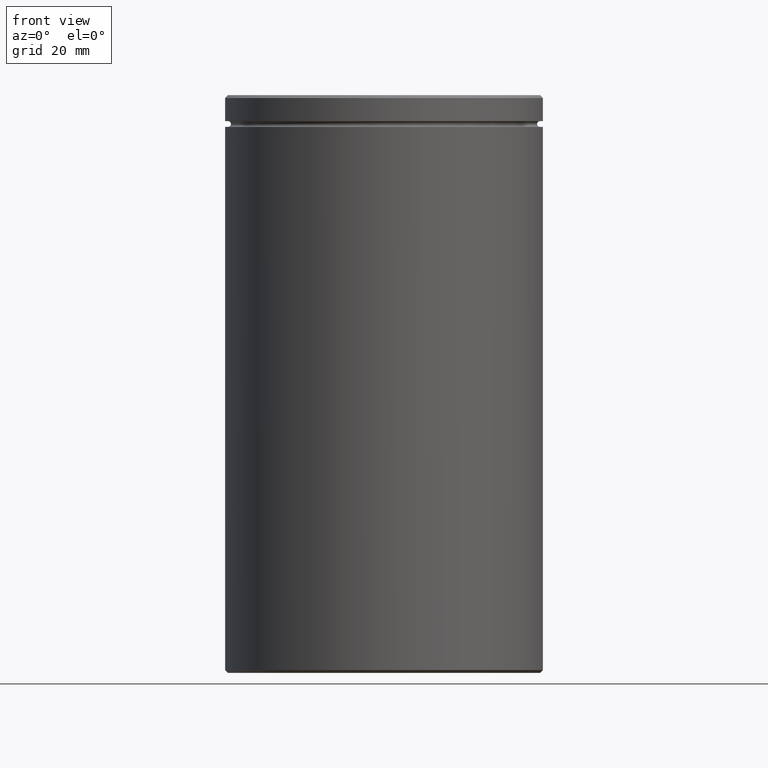
[diagram: clean part render]
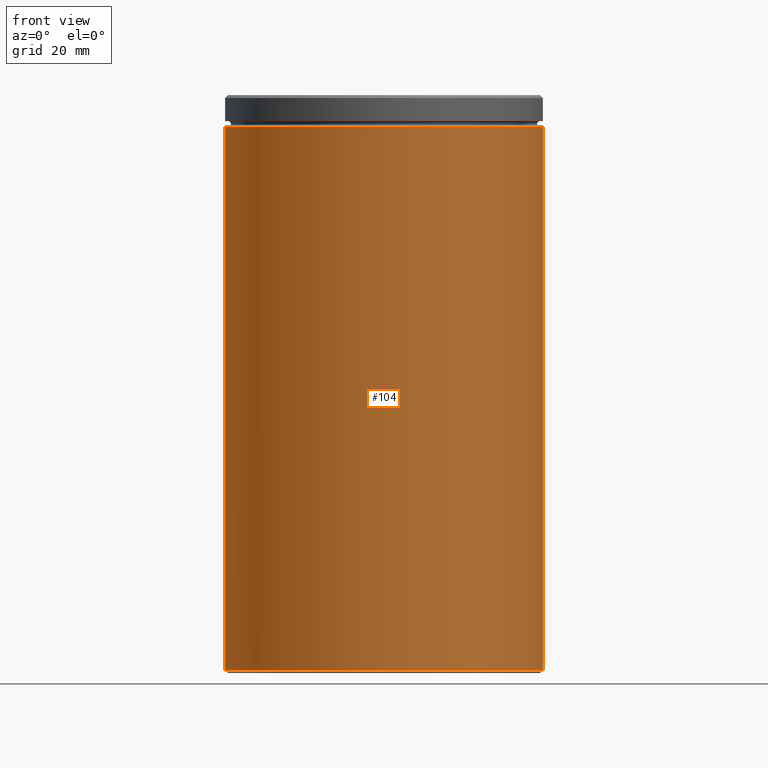
[diagram: same view with one face highlighted and labeled with its STEP entity id]
A machine part, front view. The second image highlights one B-rep face of the part: STEP entity #104.
In plain terms, the highlighted cylindrical surface (partial cylindrical patch) has radius 27.5 mm, axis along (-0, -0, 1).
Its self-contained STEP definition (entity closure, byte-faithful):
#28 = LINE ( 'NONE', #181, #98 ) ;
#47 = DIRECTION ( 'NONE',  ( -0.000000000000000000, -0.000000000000000000, 1.000000000000000000 ) ) ;
#57 = ORIENTED_EDGE ( 'NONE', *, *, #567, .F. ) ;
#63 = DIRECTION ( 'NONE',  ( -0.000000000000000000, -0.000000000000000000, 1.000000000000000000 ) ) ;
#65 = CIRCLE ( 'NONE', #158, 27.50000000000000000 ) ;
#85 = DIRECTION ( 'NONE',  ( 1.000000000000000000, 0.000000000000000000, 0.000000000000000000 ) ) ;
#92 = ORIENTED_EDGE ( 'NONE', *, *, #315, .F. ) ;
#98 = VECTOR ( 'NONE', #399, 1000.000000000000000 ) ;
#104 = ADVANCED_FACE ( 'NONE', ( #106 ), #367, .T. ) ;
#106 = FACE_OUTER_BOUND ( 'NONE', #120, .T. ) ;
#120 = EDGE_LOOP ( 'NONE', ( #92, #170, #350, #57 ) ) ;
#121 = DIRECTION ( 'NONE',  ( -1.000000000000000000, 0.000000000000000000, 0.000000000000000000 ) ) ;
#158 = AXIS2_PLACEMENT_3D ( 'NONE', #226, #313, #85 ) ;
#170 = ORIENTED_EDGE ( 'NONE', *, *, #472, .T. ) ;
#175 = CARTESIAN_POINT ( 'NONE',  ( 0.000000000000000000, 0.000000000000000000, -99.49999999999995737 ) ) ;
#181 = CARTESIAN_POINT ( 'NONE',  ( 27.50000000000000000, 0.000000000000000000, 0.000000000000000000 ) ) ;
#182 = VERTEX_POINT ( 'NONE', #419 ) ;
#201 = CARTESIAN_POINT ( 'NONE',  ( 0.000000000000000000, 0.000000000000000000, 0.000000000000000000 ) ) ;
#218 = CARTESIAN_POINT ( 'NONE',  ( 27.50000000000000000, 0.000000000000000000, -5.500000000000000000 ) ) ;
#223 = EDGE_CURVE ( 'NONE', #345, #490, #28, .T. ) ;
#226 = CARTESIAN_POINT ( 'NONE',  ( 0.000000000000000000, 0.000000000000000000, -5.500000000000000000 ) ) ;
#313 = DIRECTION ( 'NONE',  ( -0.000000000000000000, -0.000000000000000000, 1.000000000000000000 ) ) ;
#315 = EDGE_CURVE ( 'NONE', #182, #540, #492, .T. ) ;
#321 = CARTESIAN_POINT ( 'NONE',  ( 27.50000000000000000, 0.000000000000000000, -99.49999999999995737 ) ) ;
#334 = DIRECTION ( 'NONE',  ( -0.000000000000000000, -0.000000000000000000, 1.000000000000000000 ) ) ;
#337 = AXIS2_PLACEMENT_3D ( 'NONE', #175, #334, #121 ) ;
#345 = VERTEX_POINT ( 'NONE', #321 ) ;
#350 = ORIENTED_EDGE ( 'NONE', *, *, #223, .T. ) ;
#367 = CYLINDRICAL_SURFACE ( 'NONE', #474, 27.50000000000000000 ) ;
#399 = DIRECTION ( 'NONE',  ( -0.000000000000000000, -0.000000000000000000, 1.000000000000000000 ) ) ;
#419 = CARTESIAN_POINT ( 'NONE',  ( -27.50000000000000000, 3.367778697655221307E-15, -99.49999999999995737 ) ) ;
#440 = CARTESIAN_POINT ( 'NONE',  ( -27.50000000000000000, 3.367778697655221307E-15, -5.500000000000000000 ) ) ;
#441 = CARTESIAN_POINT ( 'NONE',  ( -27.50000000000000000, 3.367778697655221307E-15, 0.000000000000000000 ) ) ;
#455 = DIRECTION ( 'NONE',  ( 1.000000000000000000, 0.000000000000000000, 0.000000000000000000 ) ) ;
#472 = EDGE_CURVE ( 'NONE', #182, #345, #550, .T. ) ;
#474 = AXIS2_PLACEMENT_3D ( 'NONE', #201, #63, #455 ) ;
#478 = VECTOR ( 'NONE', #47, 1000.000000000000000 ) ;
#490 = VERTEX_POINT ( 'NONE', #218 ) ;
#492 = LINE ( 'NONE', #441, #478 ) ;
#540 = VERTEX_POINT ( 'NONE', #440 ) ;
#550 = CIRCLE ( 'NONE', #337, 27.50000000000000000 ) ;
#567 = EDGE_CURVE ( 'NONE', #540, #490, #65, .T. ) ;